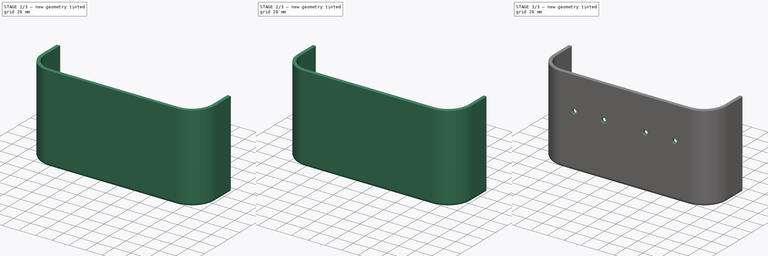
[diagram: build sequence overview — one tinted view per stage of 3, left to right]
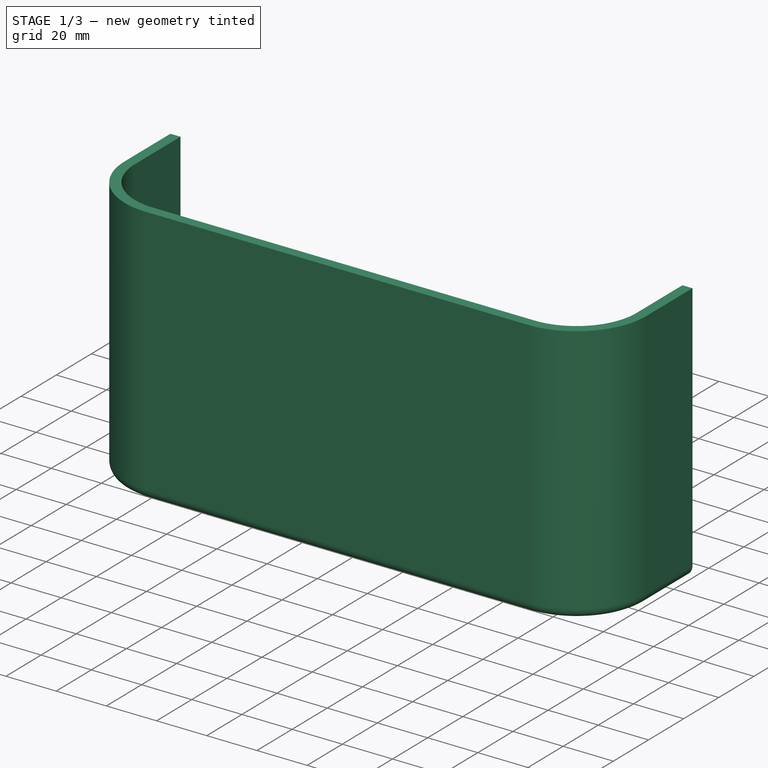
[diagram: stage 1 of 3 — iso view after this stage's code; geometry added in this stage tinted green]
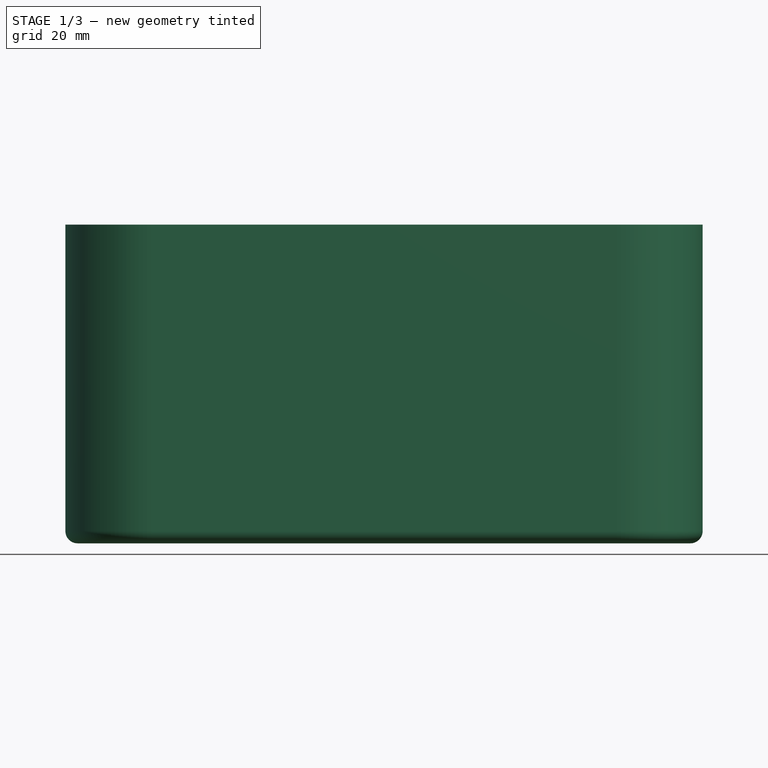
[diagram: stage 1 of 3 — front view after this stage's code; geometry added in this stage tinted green]
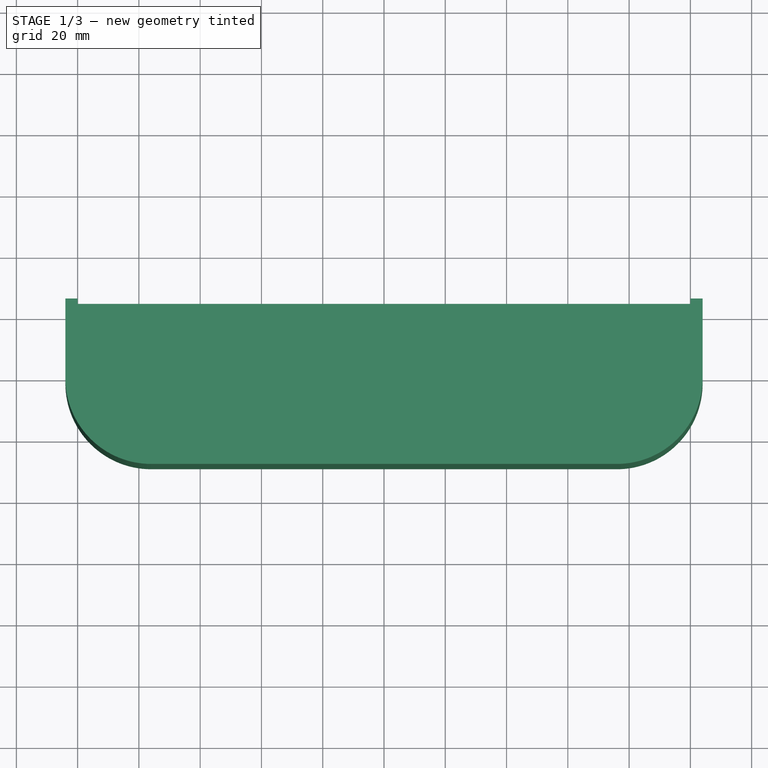
[diagram: stage 1 of 3 — top view after this stage's code; geometry added in this stage tinted green]
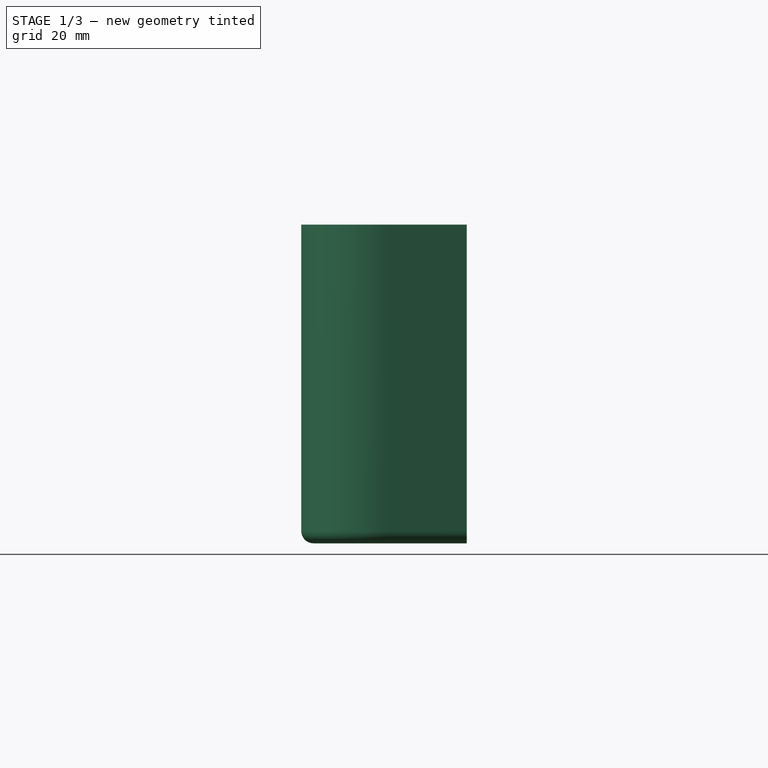
[diagram: stage 1 of 3 — right view after this stage's code; geometry added in this stage tinted green]
FCSTD DOCUMENT  (FreeCAD 0.22R33981 (Git))
Label: shelf
License: All rights reserved
LicenseURL: http://en.wikipedia.org/wiki/All_rights_reserved
objects: Sketcher::SketchObject×3, PartDesign::Chamfer×2, PartDesign::Pad×1, PartDesign::Thickness×1, PartDesign::Pocket×1, PartDesign::Body×1
note: 14 computed .brp shape members not serialized (recipe doc carries the construction recipe); baked Part::Feature solids carry a one-line shape summary decoded from their .brp

FEATURE [Sketcher::SketchObject] Sketch
  FullyConstrained = true
  MapMode = 5
  Support = -> [XY_Plane]
  sketch-geometry (16):
    g0: LineSegment StartX=-100 StartY=25 StartZ=0 EndX=100 EndY=25 EndZ=0
    g1: LineSegment StartX=100 StartY=25 StartZ=0 EndX=100 EndY=-25 EndZ=0
    g2: LineSegment StartX=100 StartY=-25 StartZ=0 EndX=-100 EndY=-25 EndZ=0
    g3: LineSegment StartX=-100 StartY=-25 StartZ=0 EndX=-100 EndY=25 EndZ=0
    g4: LineSegment StartX=-100 StartY=25 StartZ=0 EndX=-96 EndY=25 EndZ=0
    g5: LineSegment StartX=-96 StartY=25 StartZ=0 EndX=-96 EndY=-3 EndZ=0
    g6: ArcOfCircle CenterX=-78 CenterY=-3 CenterZ=0 NormalX=0 NormalY=0 NormalZ=1 AngleXU=0 Radius=18 StartAngle=3.14159 EndAngle=4.71239
    g7: LineSegment StartX=-78 StartY=-21 StartZ=0 EndX=78 EndY=-21 EndZ=0
    g8: ArcOfCircle CenterX=78 CenterY=-3 CenterZ=0 NormalX=0 NormalY=0 NormalZ=1 AngleXU=0 Radius=18 StartAngle=4.71239 EndAngle=6.28319
    g9: LineSegment StartX=96 StartY=-3 StartZ=0 EndX=96 EndY=25 EndZ=0
    g10: LineSegment StartX=96 StartY=25 StartZ=0 EndX=100 EndY=25 EndZ=0
    g11: LineSegment StartX=100 StartY=25 StartZ=0 EndX=100 EndY=-3 EndZ=0
    g12: ArcOfCircle CenterX=78 CenterY=-3 CenterZ=0 NormalX=0 NormalY=0 NormalZ=1 AngleXU=0 Radius=22 StartAngle=4.71239 EndAngle=6.28319
    g13: LineSegment StartX=78 StartY=-25 StartZ=0 EndX=-78 EndY=-25 EndZ=0
    g14: ArcOfCircle CenterX=-78 CenterY=-3 CenterZ=0 NormalX=0 NormalY=0 NormalZ=1 AngleXU=0 Radius=22 StartAngle=3.14159 EndAngle=4.71239
    g15: LineSegment StartX=-100 StartY=-3 StartZ=0 EndX=-100 EndY=25 EndZ=0
  constraints (41):
    c: Coincident(g0,g1)
    c: Coincident(g1,g2)
    c: Coincident(g2,g3)
    c: Coincident(g3,g0)
    c: Horizontal(g0)
    c: Horizontal(g2)
    c: Vertical(g1)
    c: Vertical(g3)
    c: DistanceX(g0,g0) = 200
    c: DistanceY(g1,g1) = 50
    c: Symmetric(g2,g0,g-1)
    c: Coincident(g4,g5)
    c: Vertical(g5)
    c: Tangent(g5,g6) = -1.5708
    c: Coincident(g6,g7)
    c: Horizontal(g7)
    c: Tangent(g7,g8) = -1.5708
    c: Tangent(g8,g9) = -1.5708
    c: Coincident(g9,g10)
    c: Horizontal(g10)
    c: Coincident(g10,g11)
    c: Vertical(g11)
    c: Tangent(g11,g12) = 1.5708
    c: Coincident(g12,g13)
    c: Horizontal(g13)
    c: Tangent(g13,g14) = 1.5708
    c: Tangent(g14,g15) = 1.5708
    c: Coincident(g15,g4)
    c: Vertical(g15)
    c: Horizontal(g4)
    c: Vertical(g9)
    c: Equal(g4,g10)
    c: DistanceX(g4,g4) = 4
    c: DistanceY(g13,g6) = 4
    c: Coincident(g14,g6)
    c: Coincident(g12,g8)
    c: Equal(g6,g8)
    c: Radius(g6) = 18
    c: Coincident(g4,g0)
    c: Coincident(g10,g0)
    c: PointOnObject(g13,g2)
FEATURE [Sketcher::SketchObject] Sketch001
  FullyConstrained = true
  MapMode = 5
  Support = -> [XY_Plane]
  sketch-geometry (10):
    g0: LineSegment StartX=-100 StartY=25 StartZ=0 EndX=100 EndY=25 EndZ=0
    g1: LineSegment StartX=100 StartY=25 StartZ=0 EndX=100 EndY=-25 EndZ=0
    g2: LineSegment StartX=100 StartY=-25 StartZ=0 EndX=-100 EndY=-25 EndZ=0
    g3: LineSegment StartX=-100 StartY=-25 StartZ=0 EndX=-100 EndY=25 EndZ=0
    g4: LineSegment StartX=-100 StartY=25 StartZ=0 EndX=100 EndY=25 EndZ=0
    g5: LineSegment StartX=100 StartY=25 StartZ=0 EndX=100 EndY=-1 EndZ=0
    g6: ArcOfCircle CenterX=76 CenterY=-1 CenterZ=0 NormalX=0 NormalY=0 NormalZ=1 AngleXU=0 Radius=24 StartAngle=4.71239 EndAngle=6.28319
    g7: LineSegment StartX=76 StartY=-25 StartZ=0 EndX=-76 EndY=-25 EndZ=0
    g8: ArcOfCircle CenterX=-76 CenterY=-1 CenterZ=0 NormalX=0 NormalY=0 NormalZ=1 AngleXU=0 Radius=24 StartAngle=3.14159 EndAngle=4.71239
    g9: LineSegment StartX=-100 StartY=-1 StartZ=0 EndX=-100 EndY=25 EndZ=0
  constraints (25):
    c: Coincident(g0,g1)
    c: Coincident(g1,g2)
    c: Coincident(g2,g3)
    c: Coincident(g3,g0)
    c: Horizontal(g0)
    c: Horizontal(g2)
    c: Vertical(g1)
    c: Vertical(g3)
    c: DistanceX(g0,g0) = 200
    c: DistanceY(g1,g1) = 50
    c: Symmetric(g2,g0,g-1)
    c: Coincident(g4,g5)
    c: Vertical(g5)
    c: Tangent(g5,g6) = 1.5708
    c: Horizontal(g7)
    c: Tangent(g7,g8) = 1.5708
    c: Tangent(g8,g9) = 1.5708
    c: Vertical(g9)
    c: Coincident(g4,g0)
    c: PointOnObject(g7,g2)
    c: Coincident(g4,g9)
    c: Coincident(g4,g0)
    c: Equal(g8,g6)
    c: Tangent(g6,g7) = 1.5708
    c: Radius(g8) = 24
FEATURE [PartDesign::Pad] Pad
  Direction = (0,0,1)
  Length = 100
  Length2 = 10
  Profile = -> Sketch001
  ReferenceAxis = -> Sketch001 [N_Axis]
  Type = 0
FEATURE [PartDesign::Thickness] Thickness
  Base = -> Pad [Face8,Face1]
  BaseFeature = -> Pad
  Intersection = false
  Join = 0
  Mode = 0
  SupportTransform = false
  Value = 4
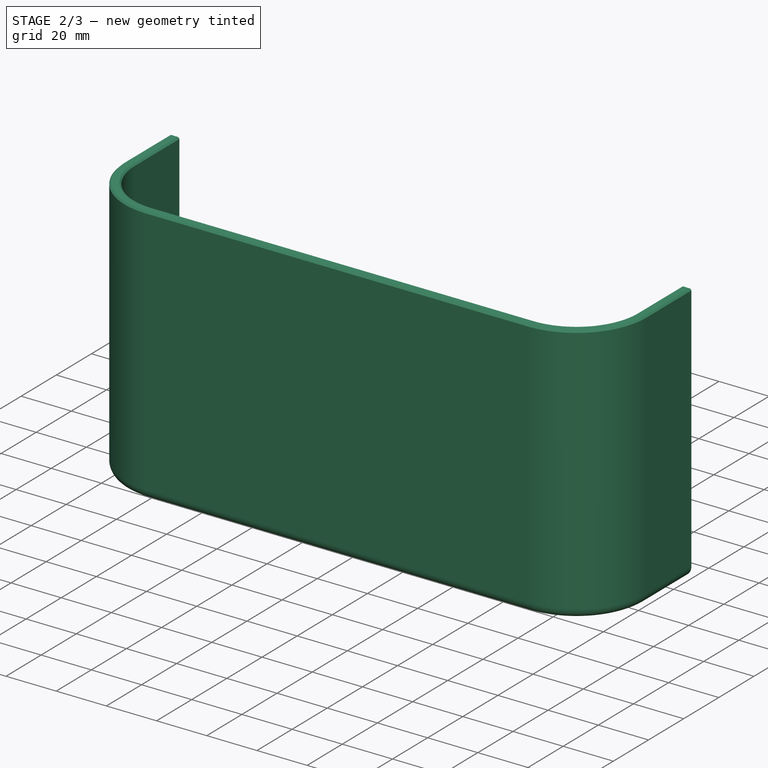
[diagram: stage 2 of 3 — iso view after this stage's code; geometry added in this stage tinted green]
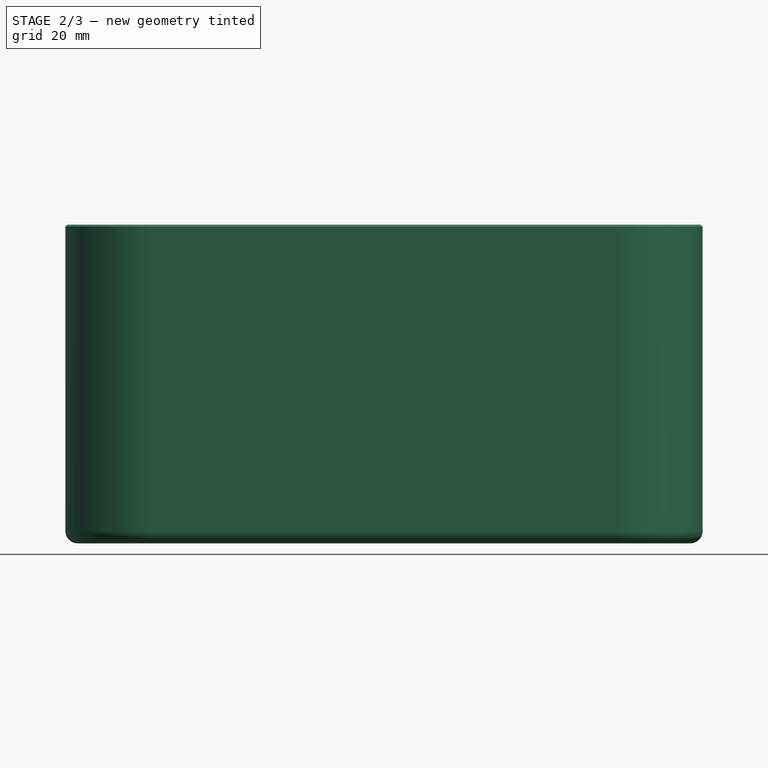
[diagram: stage 2 of 3 — front view after this stage's code; geometry added in this stage tinted green]
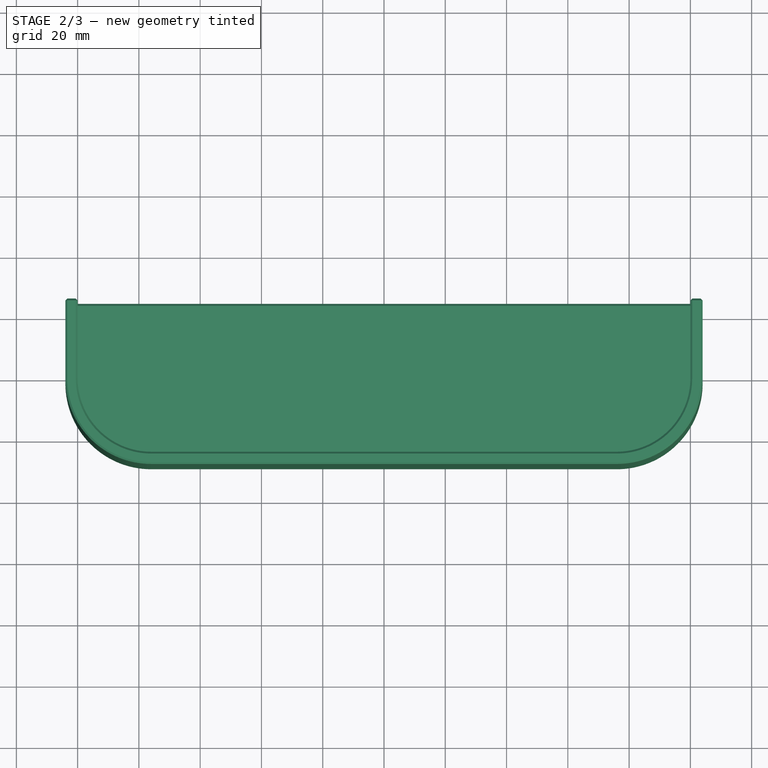
[diagram: stage 2 of 3 — top view after this stage's code; geometry added in this stage tinted green]
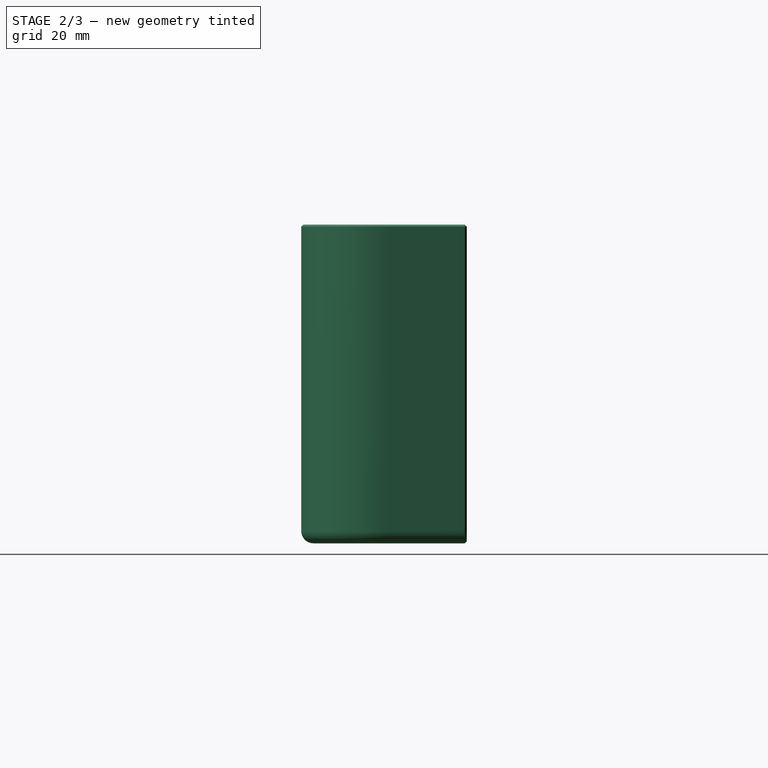
[diagram: stage 2 of 3 — right view after this stage's code; geometry added in this stage tinted green]
FEATURE [PartDesign::Chamfer] Chamfer
  Angle = 45
  Base = -> Thickness [Face7,Face8]
  BaseFeature = -> Thickness
  ChamferType = 0
  FlipDirection = false
  Size = 0.6
  Size2 = 1
  SupportTransform = false
  UseAllEdges = false
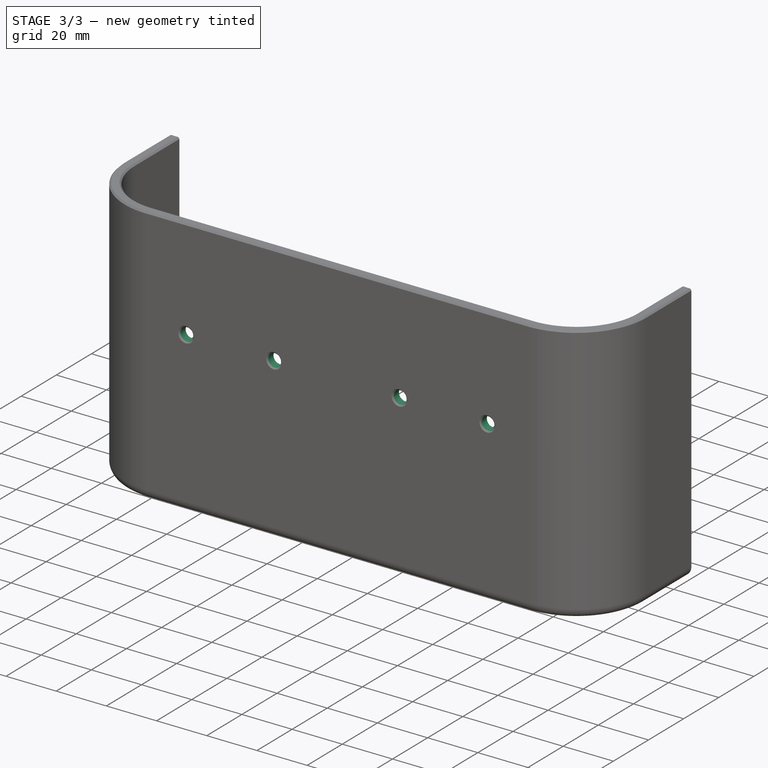
[diagram: stage 3 of 3 — iso view after this stage's code; geometry added in this stage tinted green]
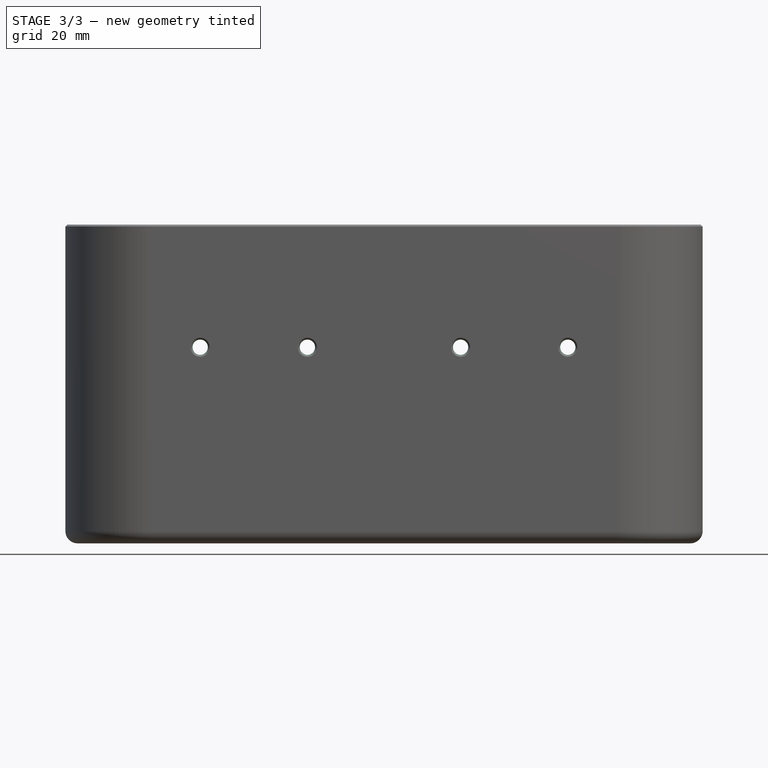
[diagram: stage 3 of 3 — front view after this stage's code; geometry added in this stage tinted green]
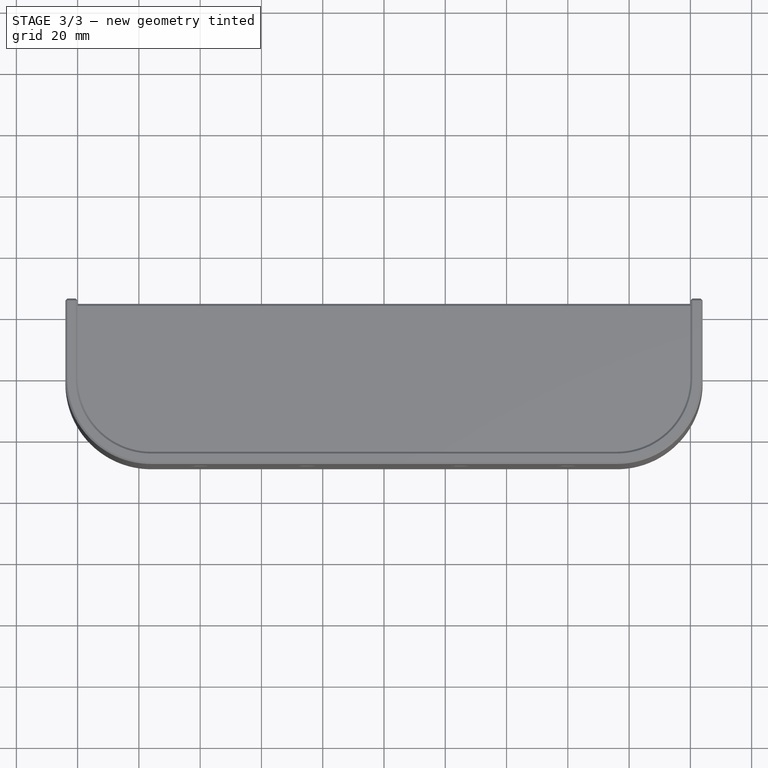
[diagram: stage 3 of 3 — top view after this stage's code; geometry added in this stage tinted green]
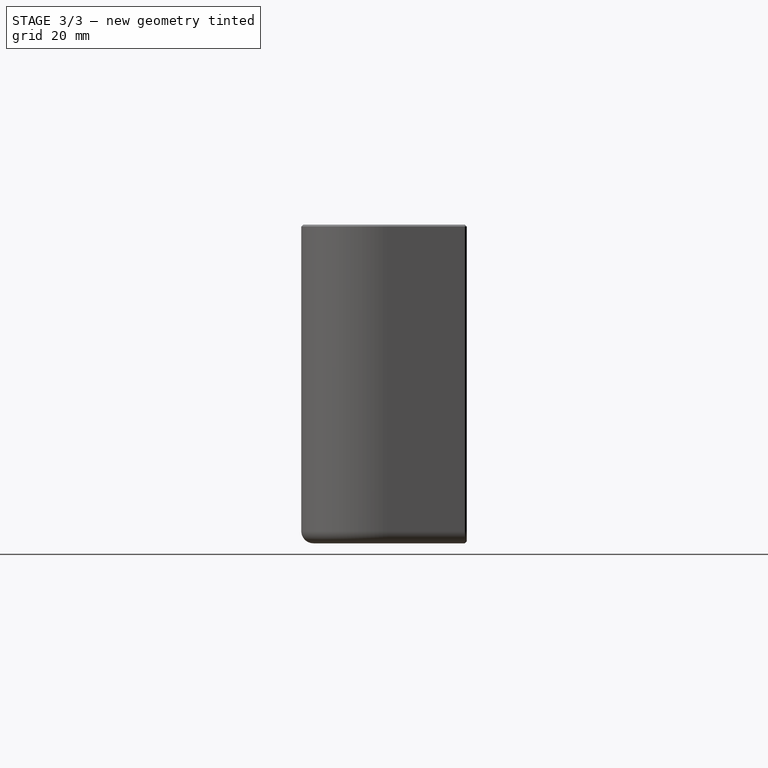
[diagram: stage 3 of 3 — right view after this stage's code; geometry added in this stage tinted green]
FEATURE [Sketcher::SketchObject] Sketch002
  FullyConstrained = true
  MapMode = 5
  Placement = pos=(0,-25,0) rot=(0,0.707107,0.707107;3.14159rad)
  Support = -> [Chamfer]
  sketch-geometry (4):
    g0: Circle CenterX=-60 CenterY=60 CenterZ=0 NormalX=0 NormalY=0 NormalZ=1 AngleXU=0 Radius=2.5
    g1: Circle CenterX=-25 CenterY=60 CenterZ=0 NormalX=0 NormalY=0 NormalZ=1 AngleXU=0 Radius=2.5
    g2: Circle CenterX=25 CenterY=60 CenterZ=0 NormalX=0 NormalY=0 NormalZ=1 AngleXU=0 Radius=2.5
    g3: Circle CenterX=60 CenterY=60 CenterZ=0 NormalX=0 NormalY=0 NormalZ=1 AngleXU=0 Radius=2.5
  constraints (10):
    c: Equal(g0,g1)
    c: Equal(g0,g2)
    c: Equal(g0,g3)
    c: Diameter(g0) = 5
    c: Symmetric(g0,g3,g-2)
    c: Symmetric(g1,g2,g-2)
    c: Horizontal(g1,g0)
    c: DistanceY(g-1,g1) = 60
    c: DistanceX(g0,g1) = 35
    c: DistanceX(g1,g2) = 50
FEATURE [PartDesign::Pocket] Pocket
  BaseFeature = -> Chamfer
  Direction = (0,-1,2e-16)
  Length = 5
  Length2 = 5
  Profile = -> Sketch002
  ReferenceAxis = -> Sketch002 [N_Axis]
  Type = 0
FEATURE [PartDesign::Chamfer] Chamfer001
  Angle = 45
  Base = -> Pocket [Edge23,Edge22,Edge21,Edge20,Edge59,Edge57,Edge55,Edge53]
  BaseFeature = -> Pocket
  ChamferType = 0
  FlipDirection = false
  Size = 0.6
  Size2 = 1
  SupportTransform = false
  UseAllEdges = false
FEATURE [PartDesign::Body] Body
  Group = -> [Sketch,Sketch001,Pad,Thickness,Chamfer,Sketch002,Pocket,Chamfer001]
  Origin = -> Origin
  Tip = -> Chamfer001
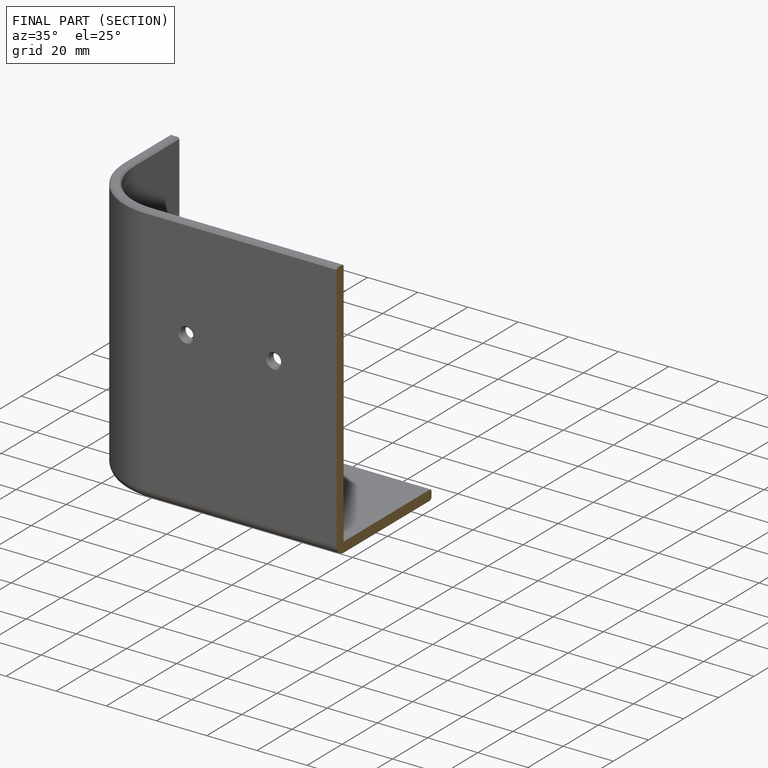
[diagram: finished part — half-section view (interior)]
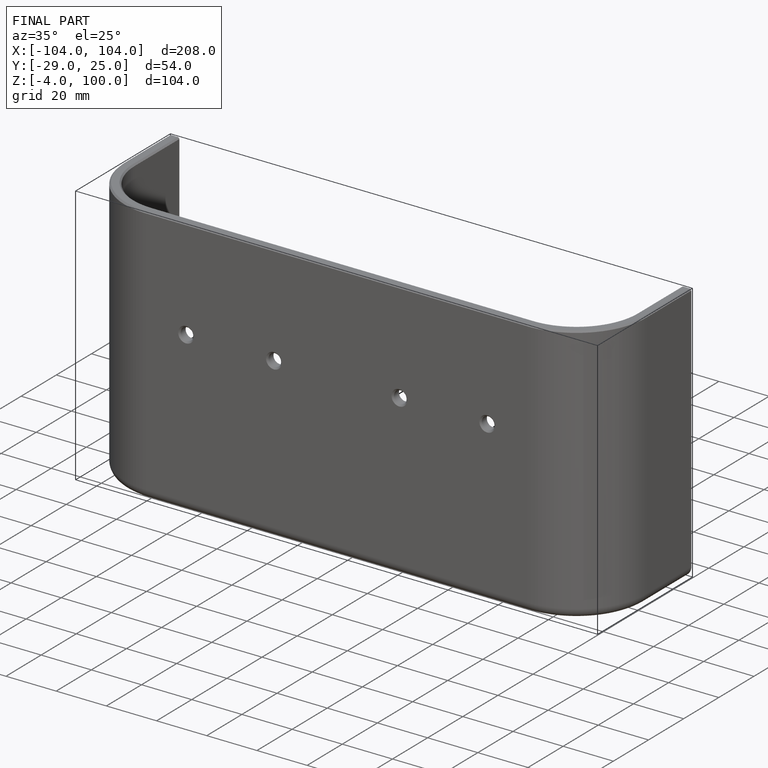
[diagram: finished part — iso view with bounding-box wireframe]
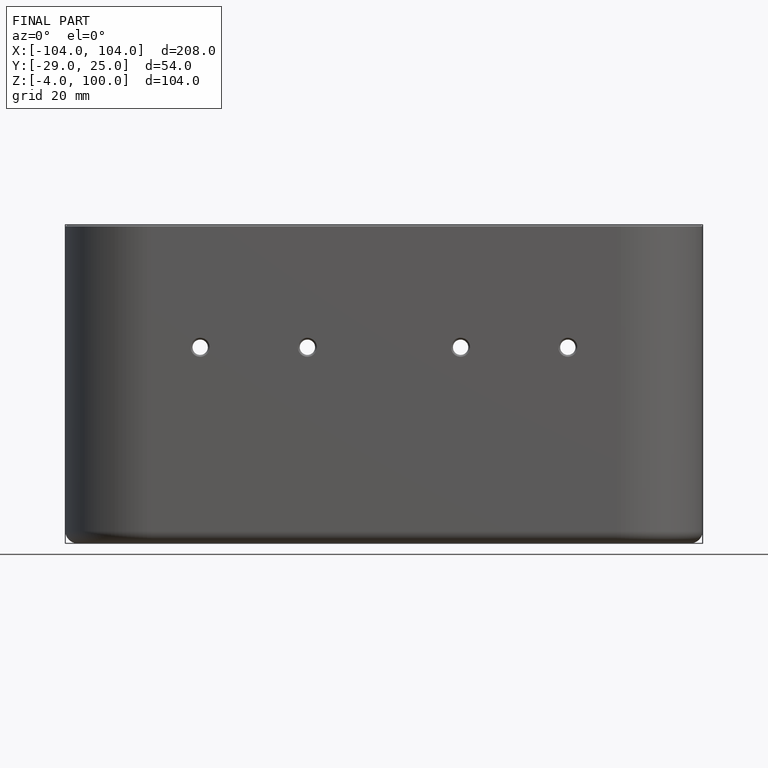
[diagram: finished part — front view with bounding-box wireframe]
